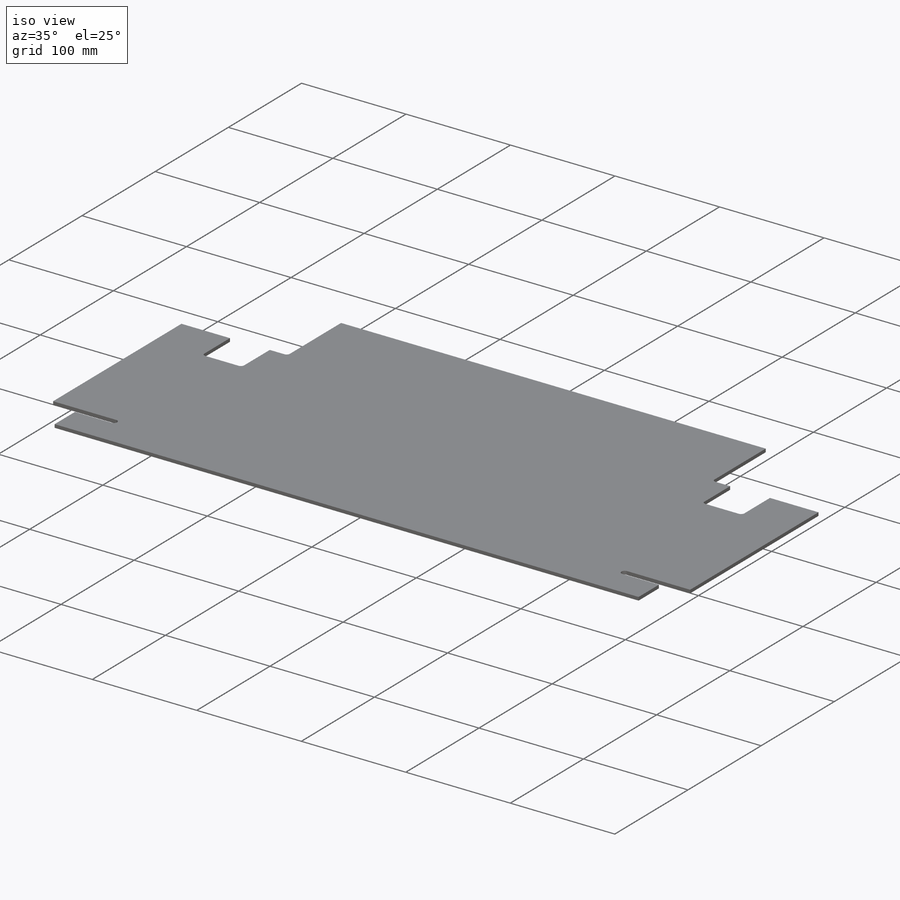
[diagram: iso view]
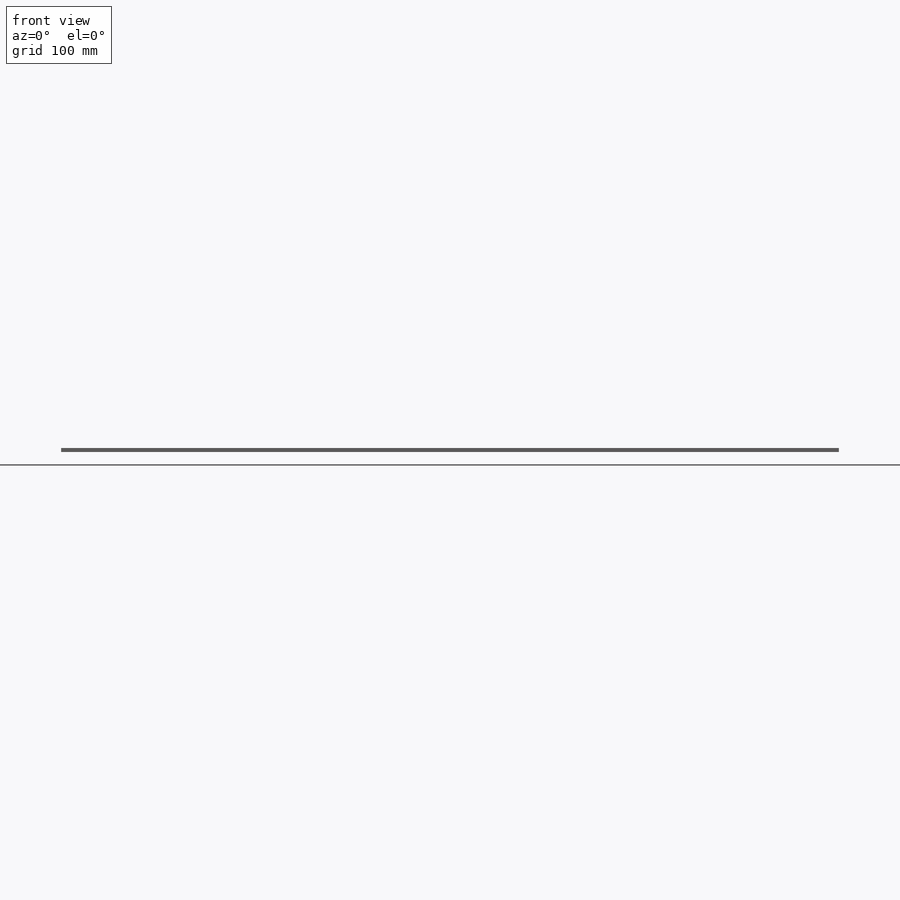
[diagram: front view]
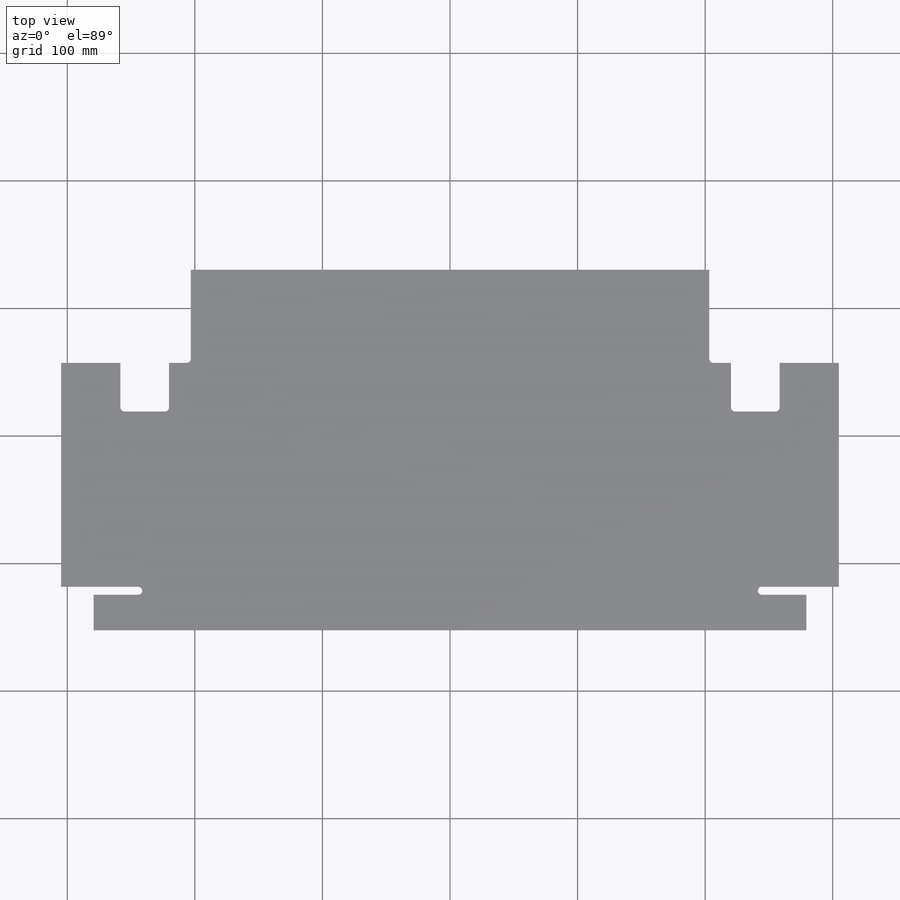
[diagram: top view]
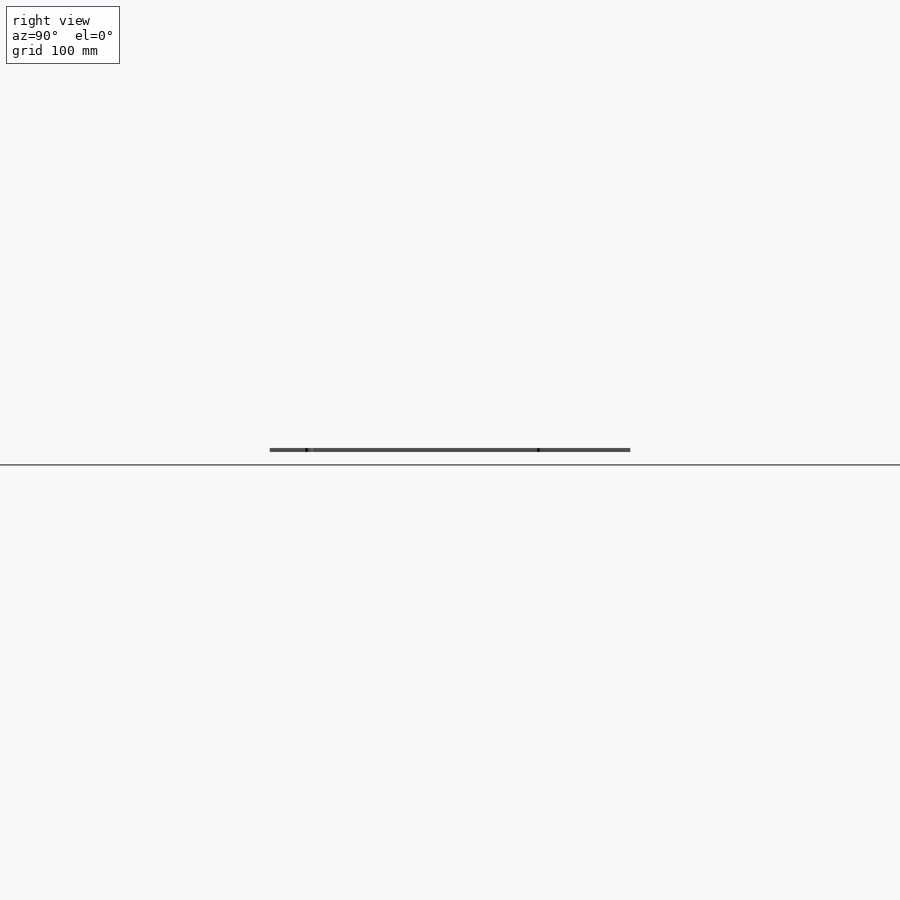
[diagram: right view]
SOLIDWORKS PART (.sldprt)
format: sldprt  version: not decoded by parser v0  size: 375,296 bytes
history: native  units: mm
features: sketch x4, cut_extrude x3, fillet x3, mirror x2, material x1, extrude x1 (+16 scaffold rows collapsed)
feature tree (30):
  scaffold x16  (default folders/planes/origin — collapsed)
  material  "Acrylic (Medium-high impact)"
  sketch  "Sketch1"  dims[D1=609.6mm D2=304.8mm]
  extrude  "Boss-Extrude1"  Depth=3.175mm
  sketch  "Sketch3"  dims[c1.D1=101.6mm c1.D2=209.55mm c1.D3=282.575mm c2.D1=101.6mm c2.D4=66.675mm]
  cut_extrude  "Cut-Extrude1"  [1 undecoded]
  fillet  "Fillet1"  Radius=3.175mm
  sketch  "Sketch4"  dims[D1=38.1mm D2=65.4685mm D3=38.1mm]
  cut_extrude  "Cut-Extrude2"  [1 undecoded]
  fillet  "Fillet2"  Radius=3.175mm
  mirror  "Mirror1"
  sketch  "Sketch5"  dims[c1.D1=34.925mm c1.D2=25.4mm c1.D3=38.1mm c1.D4=6.35mm c2.D1=~30.95625mm]
  cut_extrude  "Cut-Extrude3"  [1 undecoded]
  fillet  "Fillet3"  Radius=3.175mm
  mirror  "Mirror2"
decode coverage: 8 of 13 modeling features carry decoded parameters
note: ~ marks probable driven/reference dimensions
note: 3 parameter values undecoded
summary: no parameter record found for 3 features
note: suppression state not decoded; provenance and decode notes live in map.json
